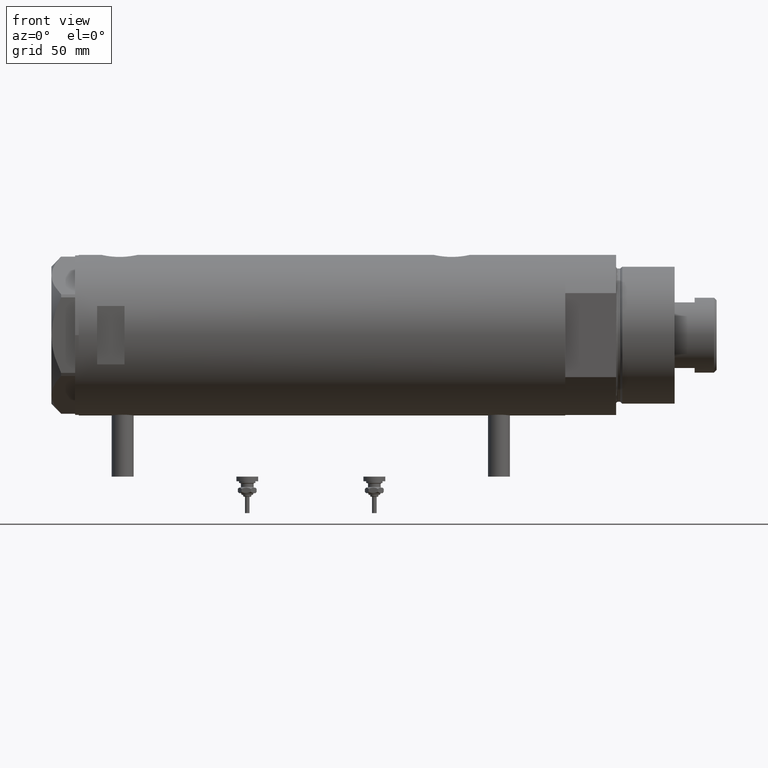
[diagram: clean part render]
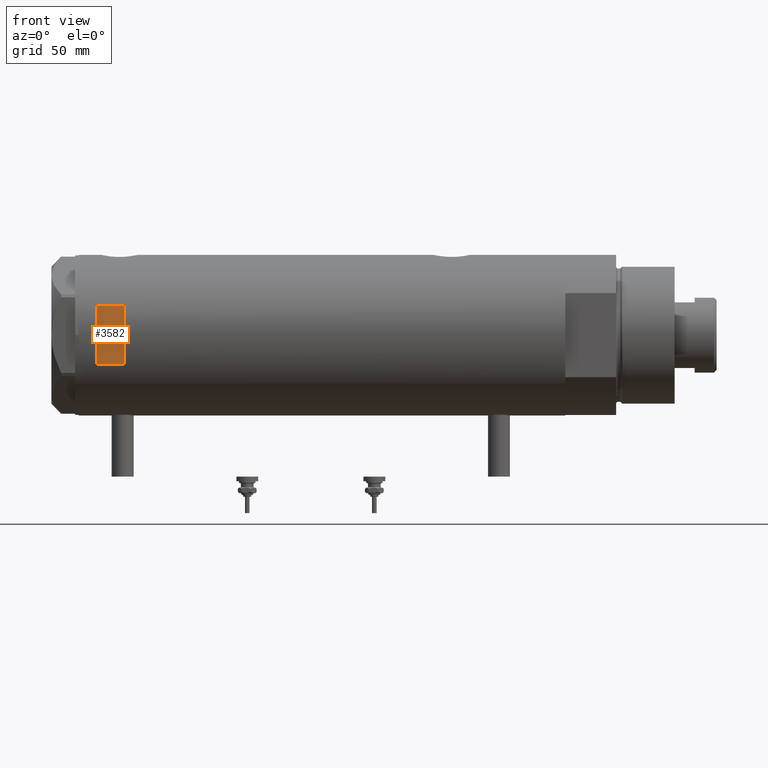
[diagram: same view with one face highlighted and labeled with its STEP entity id]
A machine part, front view. The second image highlights one B-rep face of the part: STEP entity #3582.
In plain terms, the highlighted planar face has unit normal (-0, 1, 0).
Its self-contained STEP definition (entity closure, byte-faithful):
#35 = VERTEX_POINT ( 'NONE', #4918 ) ;
#202 = FACE_OUTER_BOUND ( 'NONE', #2920, .T. ) ;
#293 = LINE ( 'NONE', #5768, #2700 ) ;
#562 = EDGE_CURVE ( 'NONE', #4169, #35, #2480, .T. ) ;
#619 = CARTESIAN_POINT ( 'NONE',  ( -44.00000000000000000, -40.99999999999999289, 123.1999999999999744 ) ) ;
#831 = EDGE_CURVE ( 'NONE', #4169, #4624, #3932, .T. ) ;
#1252 = AXIS2_PLACEMENT_3D ( 'NONE', #5683, #4582, #4299 ) ;
#1290 = DIRECTION ( 'NONE',  ( 1.000000000000000000, -0.000000000000000000, -0.000000000000000000 ) ) ;
#1407 = DIRECTION ( 'NONE',  ( 0.000000000000000000, 0.000000000000000000, 1.000000000000000000 ) ) ;
#1444 = LINE ( 'NONE', #3682, #4996 ) ;
#1896 = VERTEX_POINT ( 'NONE', #1899 ) ;
#1899 = CARTESIAN_POINT ( 'NONE',  ( 15.96871942267132027, -40.99999999999999289, 108.1999999999999602 ) ) ;
#2061 = PLANE ( 'NONE',  #1252 ) ;
#2062 = DIRECTION ( 'NONE',  ( -0.000000000000000000, -0.000000000000000000, -1.000000000000000000 ) ) ;
#2465 = CARTESIAN_POINT ( 'NONE',  ( -15.96871942267132027, -40.99999999999999289, 123.1999999999999744 ) ) ;
#2480 = LINE ( 'NONE', #5738, #4579 ) ;
#2635 = ORIENTED_EDGE ( 'NONE', *, *, #5841, .T. ) ;
#2700 = VECTOR ( 'NONE', #4816, 1000.000000000000000 ) ;
#2920 = EDGE_LOOP ( 'NONE', ( #5125, #2635, #4718, #3000 ) ) ;
#3000 = ORIENTED_EDGE ( 'NONE', *, *, #831, .F. ) ;
#3327 = EDGE_CURVE ( 'NONE', #1896, #4624, #1444, .T. ) ;
#3443 = CARTESIAN_POINT ( 'NONE',  ( 15.96871942267132027, -40.99999999999999289, 123.1999999999999744 ) ) ;
#3582 = ADVANCED_FACE ( 'NONE', ( #202 ), #2061, .F. ) ;
#3682 = CARTESIAN_POINT ( 'NONE',  ( 15.96871942267132027, -40.99999999999999289, -133.1999999999999886 ) ) ;
#3932 = LINE ( 'NONE', #619, #5959 ) ;
#4169 = VERTEX_POINT ( 'NONE', #2465 ) ;
#4299 = DIRECTION ( 'NONE',  ( 0.000000000000000000, -0.000000000000000000, 1.000000000000000000 ) ) ;
#4579 = VECTOR ( 'NONE', #2062, 1000.000000000000000 ) ;
#4582 = DIRECTION ( 'NONE',  ( 0.000000000000000000, 1.000000000000000000, 0.000000000000000000 ) ) ;
#4624 = VERTEX_POINT ( 'NONE', #3443 ) ;
#4718 = ORIENTED_EDGE ( 'NONE', *, *, #3327, .T. ) ;
#4816 = DIRECTION ( 'NONE',  ( 1.000000000000000000, -0.000000000000000000, -0.000000000000000000 ) ) ;
#4918 = CARTESIAN_POINT ( 'NONE',  ( -15.96871942267132027, -40.99999999999999289, 108.1999999999999602 ) ) ;
#4996 = VECTOR ( 'NONE', #1407, 1000.000000000000000 ) ;
#5125 = ORIENTED_EDGE ( 'NONE', *, *, #562, .T. ) ;
#5683 = CARTESIAN_POINT ( 'NONE',  ( -44.00000000000000000, -40.99999999999999289, 123.1999999999999744 ) ) ;
#5738 = CARTESIAN_POINT ( 'NONE',  ( -15.96871942267132027, -40.99999999999999289, -133.1999999999999886 ) ) ;
#5768 = CARTESIAN_POINT ( 'NONE',  ( -44.00000000000000000, -40.99999999999999289, 108.1999999999999744 ) ) ;
#5841 = EDGE_CURVE ( 'NONE', #35, #1896, #293, .T. ) ;
#5959 = VECTOR ( 'NONE', #1290, 1000.000000000000000 ) ;